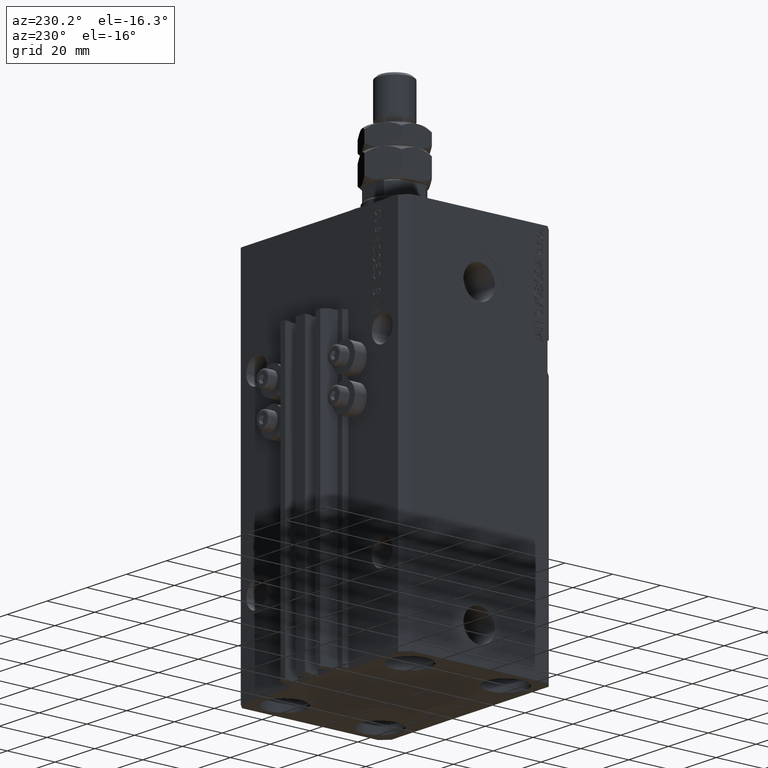
[diagram: clean part render]
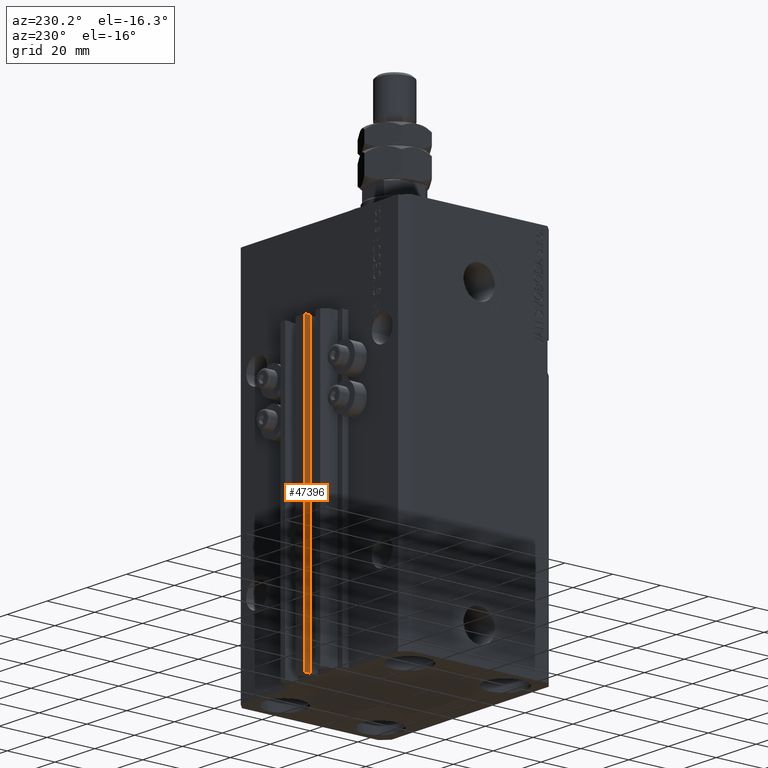
[diagram: same view with one face highlighted and labeled with its STEP entity id]
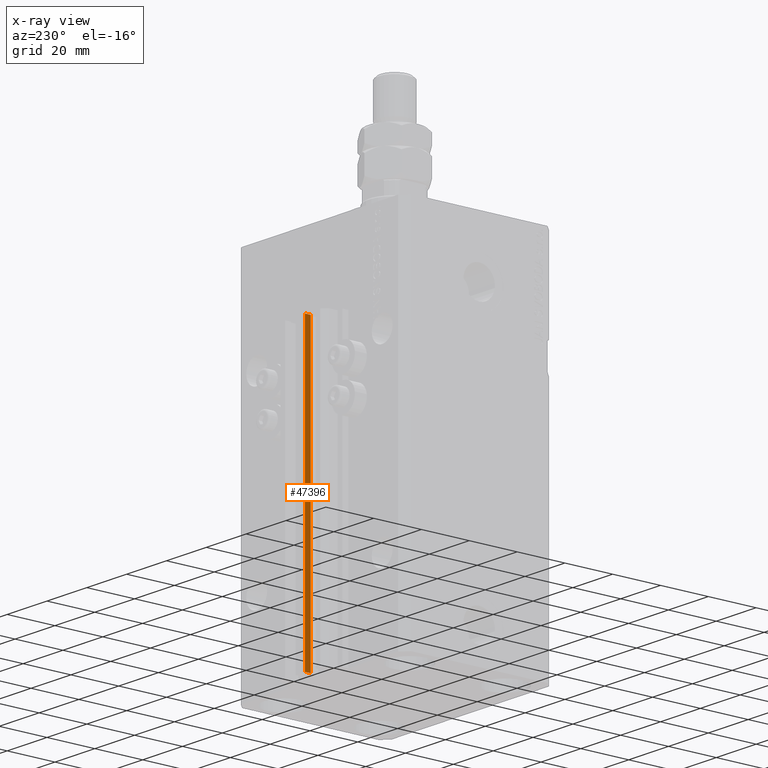
[diagram: x-ray of the same camera — body ghosted, the highlighted face saturated]
A machine part, auxiliary view. The second image highlights one B-rep face of the part: STEP entity #47396.
The next image is the same camera in x-ray: the body ghosted, the highlighted face saturated — about 0% of this face is hidden behind the body in this view.
In plain terms, the highlighted planar face has unit normal (-1, -0, 0).
Its self-contained STEP definition (entity closure, byte-faithful):
#324 = LINE ( 'NONE', #583, #16226 ) ;
#583 = CARTESIAN_POINT ( 'NONE',  ( -2.350000000000003642, 39.50000000000000711, -153.0000000000000000 ) ) ;
#1388 = EDGE_CURVE ( 'NONE', #10898, #30079, #7495, .T. ) ;
#4943 = AXIS2_PLACEMENT_3D ( 'NONE', #45745, #10220, #14765 ) ;
#6856 = VECTOR ( 'NONE', #37750, 1000.000000000000000 ) ;
#7495 = LINE ( 'NONE', #42033, #6856 ) ;
#8593 = EDGE_CURVE ( 'NONE', #12994, #10898, #324, .T. ) ;
#8945 = EDGE_LOOP ( 'NONE', ( #44770, #24129, #32749, #14761 ) ) ;
#10220 = DIRECTION ( 'NONE',  ( -1.000000000000000000, -1.807003620809174632E-16, 0.000000000000000000 ) ) ;
#10898 = VERTEX_POINT ( 'NONE', #27982 ) ;
#12994 = VERTEX_POINT ( 'NONE', #16217 ) ;
#14761 = ORIENTED_EDGE ( 'NONE', *, *, #1388, .T. ) ;
#14765 = DIRECTION ( 'NONE',  ( 1.807003620809174632E-16, -1.000000000000000000, 0.000000000000000000 ) ) ;
#16217 = CARTESIAN_POINT ( 'NONE',  ( -2.350000000000003642, 39.50000000000000711, -153.0000000000000000 ) ) ;
#16226 = VECTOR ( 'NONE', #30842, 1000.000000000000000 ) ;
#16885 = DIRECTION ( 'NONE',  ( 1.807003620809174632E-16, -1.000000000000000000, 0.000000000000000000 ) ) ;
#24129 = ORIENTED_EDGE ( 'NONE', *, *, #45626, .F. ) ;
#24259 = LINE ( 'NONE', #44563, #43878 ) ;
#26764 = DIRECTION ( 'NONE',  ( 0.000000000000000000, 0.000000000000000000, 1.000000000000000000 ) ) ;
#27982 = CARTESIAN_POINT ( 'NONE',  ( -2.350000000000003197, 37.10000000000000853, -153.0000000000000000 ) ) ;
#29531 = PLANE ( 'NONE',  #4943 ) ;
#30079 = VERTEX_POINT ( 'NONE', #32204 ) ;
#30842 = DIRECTION ( 'NONE',  ( 1.807003620809174632E-16, -1.000000000000000000, 0.000000000000000000 ) ) ;
#31699 = VECTOR ( 'NONE', #26764, 1000.000000000000000 ) ;
#32204 = CARTESIAN_POINT ( 'NONE',  ( -2.350000000000003197, 37.10000000000000853, -33.00000000000000000 ) ) ;
#32749 = ORIENTED_EDGE ( 'NONE', *, *, #8593, .T. ) ;
#34146 = LINE ( 'NONE', #42992, #31699 ) ;
#37750 = DIRECTION ( 'NONE',  ( 0.000000000000000000, 0.000000000000000000, 1.000000000000000000 ) ) ;
#42006 = CARTESIAN_POINT ( 'NONE',  ( -2.350000000000003642, 39.50000000000000711, -33.00000000000000000 ) ) ;
#42033 = CARTESIAN_POINT ( 'NONE',  ( -2.350000000000003197, 37.10000000000000853, -153.0000000000000000 ) ) ;
#42992 = CARTESIAN_POINT ( 'NONE',  ( -2.350000000000003642, 39.50000000000000711, -153.0000000000000000 ) ) ;
#43878 = VECTOR ( 'NONE', #16885, 1000.000000000000000 ) ;
#44563 = CARTESIAN_POINT ( 'NONE',  ( -2.350000000000003642, 39.50000000000000711, -33.00000000000000000 ) ) ;
#44770 = ORIENTED_EDGE ( 'NONE', *, *, #46938, .F. ) ;
#45503 = FACE_OUTER_BOUND ( 'NONE', #8945, .T. ) ;
#45626 = EDGE_CURVE ( 'NONE', #12994, #47968, #34146, .T. ) ;
#45745 = CARTESIAN_POINT ( 'NONE',  ( -2.350000000000003642, 39.50000000000000711, -153.0000000000000000 ) ) ;
#46938 = EDGE_CURVE ( 'NONE', #47968, #30079, #24259, .T. ) ;
#47396 = ADVANCED_FACE ( 'NONE', ( #45503 ), #29531, .T. ) ;
#47968 = VERTEX_POINT ( 'NONE', #42006 ) ;